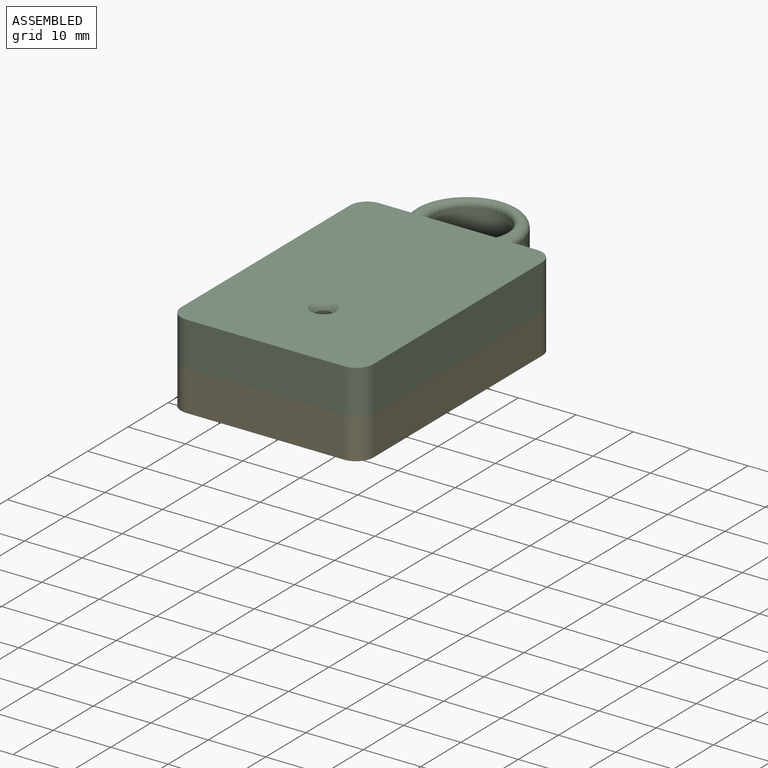
[diagram: assembled view]
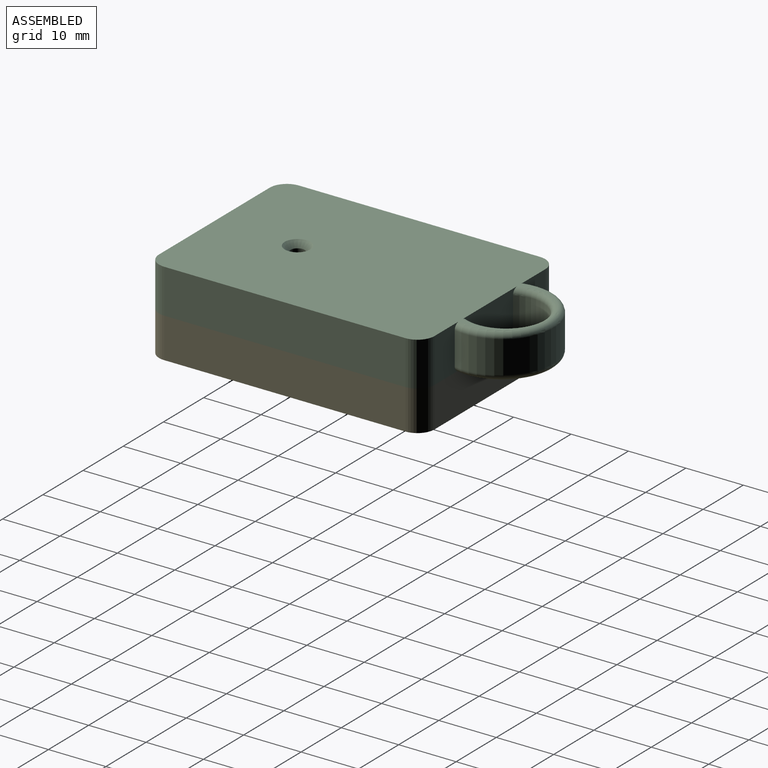
[diagram: assembled view, second angle]
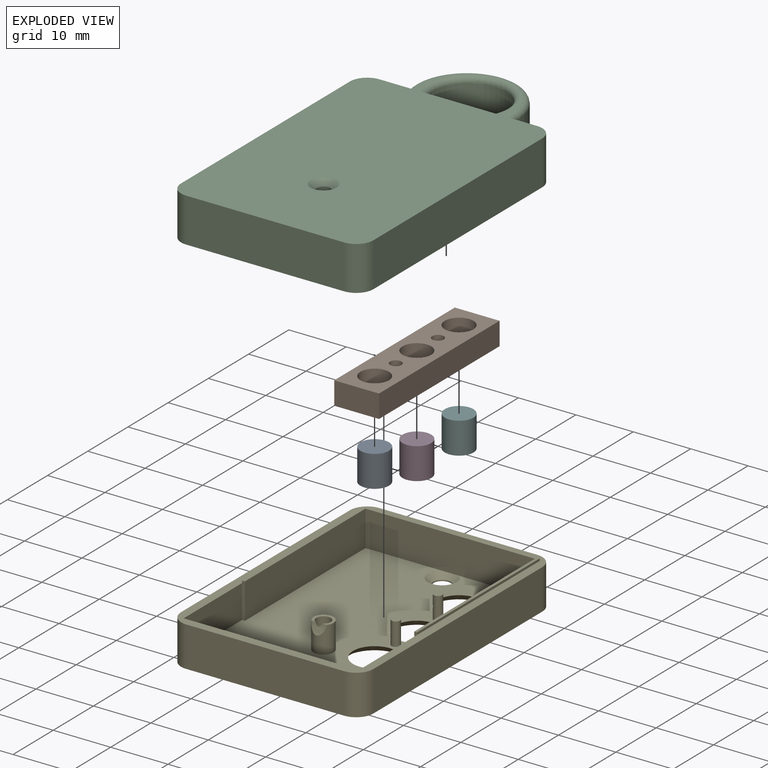
[diagram: exploded view]
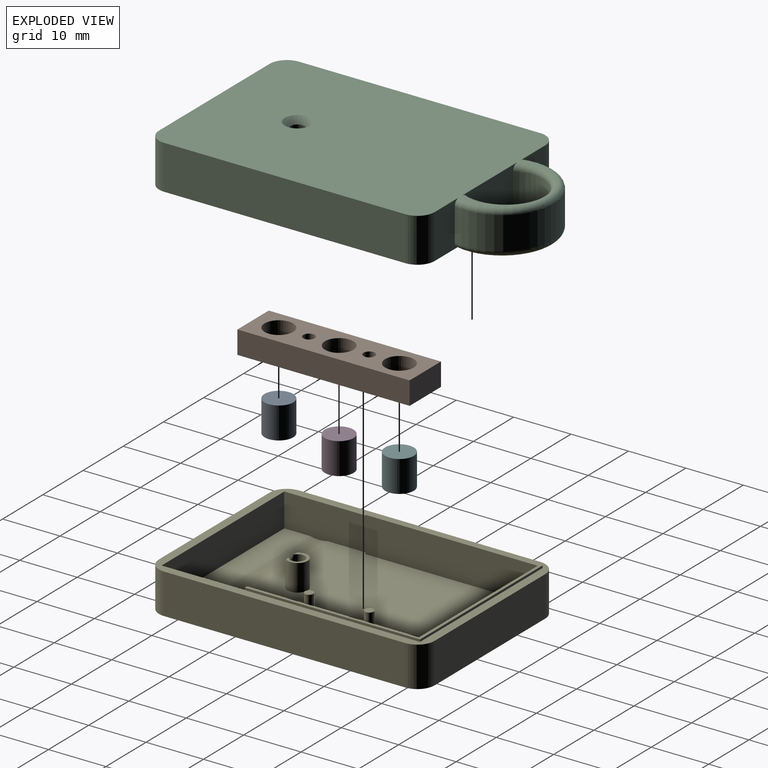
[diagram: exploded view, second angle]
ASSEMBLY  parts=6 mates=5
PART A: 3 faces, bbox 5x5x5.5 mm
  f0: cylinder r=2.5mm len=5.5mm, axis (0,0,-1), area 86.4mm2, adj f1,f2
  f1: plane 5x5mm, normal (0,0,1), area 19.6mm2, adj f0
  f2: plane 5x5mm, normal (0,0,-1), area 19.6mm2, adj f0
PART B: 11 faces, bbox 30x7.8x4 mm
  f0: plane 7.8x4mm, normal (-1,0,0), area 31.2mm2, adj f1,f7,f9,f10
  f1: plane 30x4mm, normal (0,-1,0), area 120mm2, adj f0,f2,f9,f10
  f2: plane 7.8x4mm, normal (1,0,0), area 31.2mm2, adj f1,f7,f9,f10
  f3: cylinder r=1mm len=4mm, axis (0,0,-1), area 25.1mm2, adj f9,f10
  f4: cylinder r=2.5mm len=5mm, axis (0,0,-1), area 62.8mm2, adj f9,f10
  f5: cylinder r=2.5mm len=5mm, axis (0,0,-1), area 62.8mm2, adj f9,f10
  f6: cylinder r=2.5mm len=5mm, axis (0,0,-1), area 62.8mm2, adj f9,f10
  f7: plane 30x4mm, normal (0,1,0), area 120mm2, adj f0,f2,f9,f10
  f8: cylinder r=1mm len=4mm, axis (0,0,-1), area 25.1mm2, adj f9,f10
  f9: plane 30x7.8mm, normal (0,0,1), area 168.8mm2, adj f0,f1,f2,f3,f4,f5,f6,f7
  f10: plane 30x7.8mm, normal (0,0,-1), area 168.8mm2, adj f0,f1,f2,f3,f4,f5,f6,f7
PART C: 28 faces, bbox 33.5x59.8x7.7 mm
  f0: plane 37.46x30.5mm, normal (0,0,1), area 1133mm2, adj f12,f13,f14,f17,f23
  f1: plane 30.5x4.46mm, normal (0,0,1), area 136.1mm2, adj f12,f14,f15,f23
  f2: plane 57.02x33.5mm, normal (0,0,1), area 235.6mm2, adj f3,f4,f6,f7,f9,f10,f12,f13
  f3: plane 42x7.7mm, normal (1,0,0), area 323.4mm2, adj f2,f11,f19,f22
  f4: plane 7.7x6.03mm, normal (0,1,0), area 38.9mm2, adj f2,f5,f11,f19,f24,f26
  f5: cylinder r=9mm len=18mm, axis (0,0,-1), area 185.4mm2, adj f4,f6,f24,f26
  f6: plane 7.7x6.03mm, normal (0,1,0), area 38.9mm2, adj f2,f5,f11,f20,f24,f26
  f7: plane 42x7.7mm, normal (-1,0,0), area 323.4mm2, adj f2,f11,f20,f21
  f8: cylinder r=6.4mm len=12.8mm, axis (0,0,-1), area 147.8mm2, adj f9,f25,f27
  f9: plane 13.69x7.7mm, normal (0,1,0), area 89.5mm2, adj f2,f8,f11,f25,f27
  f10: plane 27.5x7.7mm, normal (0,-1,0), area 211.7mm2, adj f2,f11,f21,f22
  f11: plane 57.02x33.5mm, normal (0,0,-1), area 1592.2mm2, adj f3,f4,f6,f7,f9,f10,f18,f19
  f12: plane 45x6mm, normal (-1,0,0), area 261.4mm2, adj f0,f1,f2,f13,f15,f23
  f13: plane 30.5x5.8mm, normal (0,-1,0), area 176.9mm2, adj f0,f2,f12,f14
  f14: plane 45x6mm, normal (1,0,0), area 261.4mm2, adj f0,f1,f2,f13,f15,f23
  f15: plane 30.5x5.8mm, normal (0,1,0), area 176.9mm2, adj f1,f2,f12,f14
  f16: cylinder r=1.25mm len=2.5mm, axis (0,0,1), area 11mm2, adj f17,f18
  f17: cone r=0.75mm half-angle=45deg, axis (0,0,-1), area 6.7mm2, adj f0,f16
  f18: cone r=2.25mm half-angle=45deg, axis (0,0,-1), area 15.6mm2, adj f11,f16
  f19: cylinder r=3mm len=7.7mm, axis (0,0,-1), area 36.3mm2, adj f2,f3,f4,f11
  f20: cylinder r=3mm len=7.7mm, axis (0,0,1), area 36.3mm2, adj f2,f6,f7,f11
  f21: cylinder r=3mm len=7.7mm, axis (0,0,-1), area 36.3mm2, adj f2,f7,f10,f11
  f22: cylinder r=3mm len=7.7mm, axis (0,0,1), area 36.3mm2, adj f2,f3,f10,f11
  f23: cylinder r=6mm len=30.5mm, axis (-1,0,0), area 94.8mm2, adj f0,f1,f12,f14
  f24: torus R=8mm, axis (0,0,1), area 49mm2, adj f4,f5,f6,f11,f25
  f25: torus R=7.4mm, axis (0,0,1), area 42.2mm2, adj f8,f9,f11,f24
  f26: torus R=8mm, axis (0,0,1), area 49mm2, adj f2,f4,f5,f6,f27
  f27: torus R=7.4mm, axis (0,0,1), area 42.2mm2, adj f2,f8,f9,f26
PART D: 3 faces, bbox 5x5x5.5 mm
  f0: cylinder r=2.5mm len=5.5mm, axis (0,0,-1), area 86.4mm2, adj f1,f2
  f1: plane 5x5mm, normal (0,0,1), area 19.6mm2, adj f0
  f2: plane 5x5mm, normal (0,0,-1), area 19.6mm2, adj f0
PART E: 74 faces, bbox 33.5x48x7.4 mm
  f0: plane 14.5x6mm, normal (-1,0,0), area 84.5mm2, adj f2,f4,f8,f13,f25,f71
  f1: plane 14.5x6mm, normal (1,0,0), area 84.5mm2, adj f2,f4,f8,f13,f25,f67
  f2: plane 36.96x30.5mm, normal (0,0,1), area 929.5mm2, adj f0,f1,f6,f16,f17,f18,f19,f25
  f3: plane 48x33.5mm, normal (0,0,-1), area 1184.9mm2, adj f9,f10,f11,f12,f15,f17,f18,f19
  f4: plane 30.5x4.46mm, normal (0,0,1), area 136.1mm2, adj f0,f1,f13,f25
  f5: cylinder r=1.25mm len=4.65mm, axis (0,0,-1), area 36.1mm2, adj f7,f14,f24
  f6: cylinder r=1.75mm len=4.65mm, axis (0,0,-1), area 47.2mm2, adj f2,f7,f24
  f7: plane 3.5x2.86mm, normal (0,0,1), area 3.6mm2, adj f5,f6,f24
  f8: plane 48x33.5mm, normal (0,0,1), area 227.8mm2, adj f0,f1,f9,f10,f11,f12,f13,f20
  f9: plane 42x7mm, normal (-1,0,0), area 294mm2, adj f3,f8,f20,f23
  f10: plane 27.5x7mm, normal (0,-1,0), area 192.5mm2, adj f3,f8,f20,f21
  f11: plane 42x7mm, normal (1,0,0), area 294mm2, adj f3,f8,f21,f22
  f12: plane 27.5x7mm, normal (0,1,0), area 192.5mm2, adj f3,f8,f22,f23
  f13: plane 30.5x5.8mm, normal (0,1,0), area 176.9mm2, adj f0,f1,f4,f8
  f14: plane 2.5x2.5mm, normal (0,0,1), area 4.9mm2, adj f5
  f15: cylinder r=1.5mm len=3mm, axis (0,0,1), area 1.9mm2, adj f3,f16
  f16: cone r=1.5mm half-angle=45deg, axis (0,0,1), area 17.8mm2, adj f2,f15,f73
  f17: cone r=3mm half-angle=45deg, axis (0,0,-1), area 46.9mm2, adj f2,f3
  f18: cone r=3mm half-angle=45deg, axis (0,0,-1), area 46.9mm2, adj f2,f3
  f19: cone r=3mm half-angle=45deg, axis (0,0,-1), area 46.9mm2, adj f2,f3
  f20: cylinder r=3mm len=7mm, axis (0,0,1), area 33mm2, adj f3,f8,f9,f10
  f21: cylinder r=3mm len=7mm, axis (0,0,-1), area 33mm2, adj f3,f8,f10,f11
  f22: cylinder r=3mm len=7mm, axis (0,0,1), area 33mm2, adj f3,f8,f11,f12
  f23: cylinder r=3mm len=7mm, axis (0,0,-1), area 33mm2, adj f3,f8,f9,f12
  f24: cylinder r=6mm len=2.7mm, axis (-1,0,0), area 3.3mm2, adj f5,f6,f7
  f25: cylinder r=6mm len=30.5mm, axis (-1,0,0), area 94.8mm2, adj f0,f1,f2,f4
  f26: cylinder r=0.75mm len=4mm, axis (0,0,-1), area 18.8mm2, adj f2,f27
  f27: plane 1.5x1.5mm, normal (0,0,1), area 1.8mm2, adj f26
  f28: cylinder r=0.75mm len=4mm, axis (0,0,-1), area 18.8mm2, adj f2,f29
  f29: plane 1.5x1.5mm, normal (0,0,1), area 1.8mm2, adj f28
  f30: extruded ~3.55x3.13mm, area 4.3mm2, adj f31,f41,f42,f63
  f31: extruded ~3.62x3.37mm, area 4.5mm2, adj f30,f32,f42,f63
  f32: plane 1x0.8mm, normal (-1,0,0), area 0.8mm2, adj f31,f33,f42,f63
  f33: plane 7.17x0.8mm, normal (0,-1,0), area 5.7mm2, adj f32,f41,f42,f63
  f34: extruded ~4.16x1.55mm, area 3.7mm2, adj f3,f35,f40,f42
  f35: extruded ~3.98x1.49mm, area 3.5mm2, adj f3,f34,f36,f42
  f36: extruded ~4.19x1.42mm, area 3.6mm2, adj f3,f35,f37,f42
  f37: plane 3.45x0.8mm, normal (-1,0,0), area 2.8mm2, adj f3,f36,f38,f42
  f38: plane 11.01x0.8mm, normal (0,1,0), area 8.8mm2, adj f3,f37,f39,f42
  f39: plane 3.12x0.8mm, normal (1,0,0), area 2.5mm2, adj f3,f38,f40,f42
  f40: extruded ~4.47x1.45mm, area 3.8mm2, adj f3,f34,f39,f42
  f41: plane 1.24x0.8mm, normal (1,0,0), area 1mm2, adj f30,f33,f42,f63
  f42: plane 11.01x9.13mm, normal (0,0,-1), area 61.7mm2, adj f30,f31,f32,f33,f34,f35,f36,f37
  f43: plane 8.63x2.65mm, normal (0.29,0.96,0), area 7.2mm2, adj f3,f44,f61,f62
  f44: plane 2.14x0.8mm, normal (1,0,0), area 1.7mm2, adj f3,f43,f45,f62
  f45: plane 8.62x2.84mm, normal (0.31,-0.95,0), area 7.3mm2, adj f3,f44,f46,f62
  f46: plane 0.8x0.07mm, normal (1,0,0), area 0.1mm2, adj f3,f45,f47,f62
  f47: extruded ~2.56x0.8mm, area 2mm2, adj f3,f46,f48,f62
  f48: extruded ~0.85x0.8mm, area 0.7mm2, adj f3,f47,f49,f62
  f49: plane 5.21x0.8mm, normal (0,1,0), area 4.2mm2, adj f3,f48,f50,f62
  f50: plane 2.18x0.8mm, normal (1,0,0), area 1.7mm2, adj f3,f49,f51,f62
  f51: plane 11.01x0.8mm, normal (0,-1,0), area 8.8mm2, adj f3,f50,f52,f62
  f52: plane 3.18x0.8mm, normal (-1,0,0), area 2.5mm2, adj f3,f51,f53,f62
  f53: plane 8.42x2.76mm, normal (-0.31,0.95,0), area 7.1mm2, adj f3,f52,f54,f62
  f54: plane 0.8x0.05mm, normal (-1,0,0), area 0mm2, adj f3,f53,f55,f62
  f55: plane 8.42x2.6mm, normal (-0.3,-0.96,0), area 7mm2, adj f3,f54,f56,f62
  f56: plane 3.18x0.8mm, normal (-1,0,0), area 2.5mm2, adj f3,f55,f57,f62
  f57: plane 11.01x0.8mm, normal (0,1,0), area 8.8mm2, adj f3,f56,f58,f62
  f58: plane 2.09x0.8mm, normal (1,0,0), area 1.7mm2, adj f3,f57,f59,f62
  f59: plane 5.12x0.8mm, normal (0,-1,0), area 4.1mm2, adj f3,f58,f60,f62
  f60: extruded ~3.52x0.8mm, area 2.8mm2, adj f3,f59,f61,f62
  f61: plane 0.8x0.07mm, normal (1,0,0), area 0.1mm2, adj f3,f43,f60,f62
  f62: plane 11.77x11.01mm, normal (0,0,-1), area 83.6mm2, adj f43,f44,f45,f46,f47,f48,f49,f50
  f63: plane 7.17x4.37mm, normal (0,0,-1), area 27.5mm2, adj f30,f31,f32,f33,f41
  f64: plane 30.5x0.4mm, normal (1,0,0), area 12.2mm2, adj f8,f65,f71,f72
  f65: plane 30.5x0.4mm, normal (0,1,0), area 12.2mm2, adj f8,f64,f66,f72
  f66: plane 30.5x0.4mm, normal (-1,0,0), area 12.2mm2, adj f8,f65,f67,f72
  f67: plane 6.2x0.5mm, normal (0,-1,0), area 3.1mm2, adj f1,f2,f66,f68,f72
  f68: plane 30x6.2mm, normal (1,0,0), area 186mm2, adj f2,f67,f69,f72
  f69: plane 29.5x6.2mm, normal (0,-1,0), area 182.9mm2, adj f2,f68,f70,f72,f73
  f70: plane 30x6.2mm, normal (-1,0,0), area 186mm2, adj f2,f69,f71,f72
  f71: plane 6.2x0.5mm, normal (0,-1,0), area 3.1mm2, adj f0,f2,f64,f70,f72
  f72: plane 30.5x30.5mm, normal (0,0,1), area 45.3mm2, adj f64,f65,f66,f67,f68,f69,f70,f71
  f73: plane 3x0.5mm, normal (0,0,-1), area 1mm2, adj f16,f69
PART F: 3 faces, bbox 5x5x5.5 mm
  f0: cylinder r=2.5mm len=5.5mm, axis (0,0,-1), area 86.4mm2, adj f1,f2
  f1: plane 5x5mm, normal (0,0,1), area 19.6mm2, adj f0
  f2: plane 5x5mm, normal (0,0,-1), area 19.6mm2, adj f0
PLACE A rot(axis=(0,0,-1),90deg) t=(9.41,46.09,-0.3)mm
PLACE B rot(axis=(0,0,-1),90deg) t=(9.41,46.09,1.2)mm
PLACE C rot(axis=(0,1,0),180deg) t=(38.72,0,14.7)mm
PLACE D rot(axis=(0,0,-1),90deg) t=(9.41,46.09,-0.3)mm
PLACE E at identity
PLACE F rot(axis=(0,0,-1),90deg) t=(9.41,46.09,-0.3)mm
MATE fastened E.f8 <-> C.f2  axis (0,0,1) through (21.97,21,7)mm
MATE fastened B.f8 <-> E.f28  axis (0,0,-1) through (46.24,-2.25,5.2)mm
MATE slider F.f0 <-> B.f4  axis (0,0,-1) through (46.24,13.5,-0.3)mm
MATE slider A.f0 <-> B.f5  axis (0,0,-1) through (46.24,-7.5,-0.3)mm
MATE slider D.f0 <-> B.f6  axis (0,0,-1) through (46.24,3,-0.3)mm
